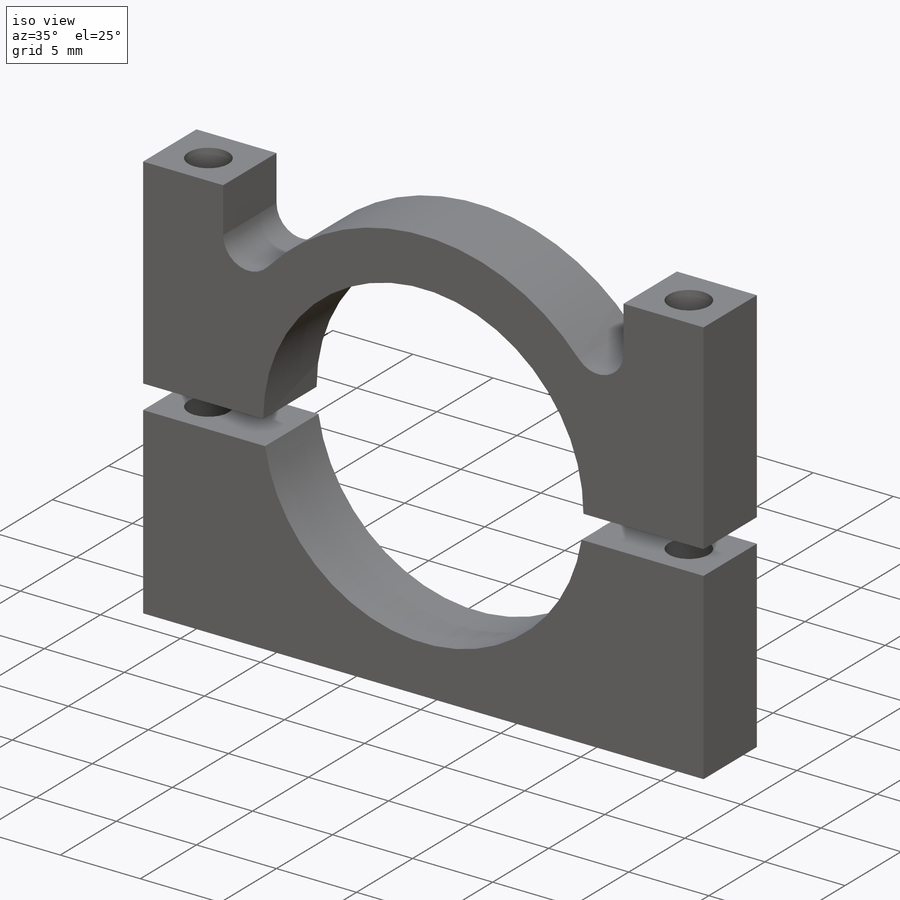
[diagram: iso view]
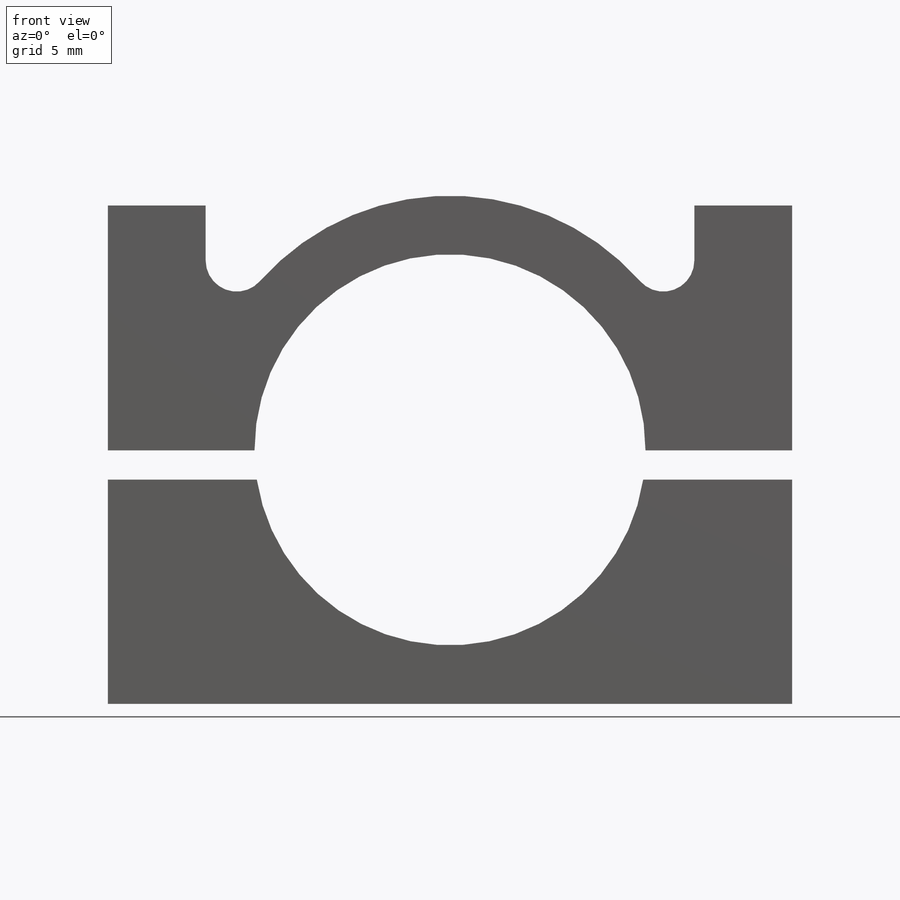
[diagram: front view]
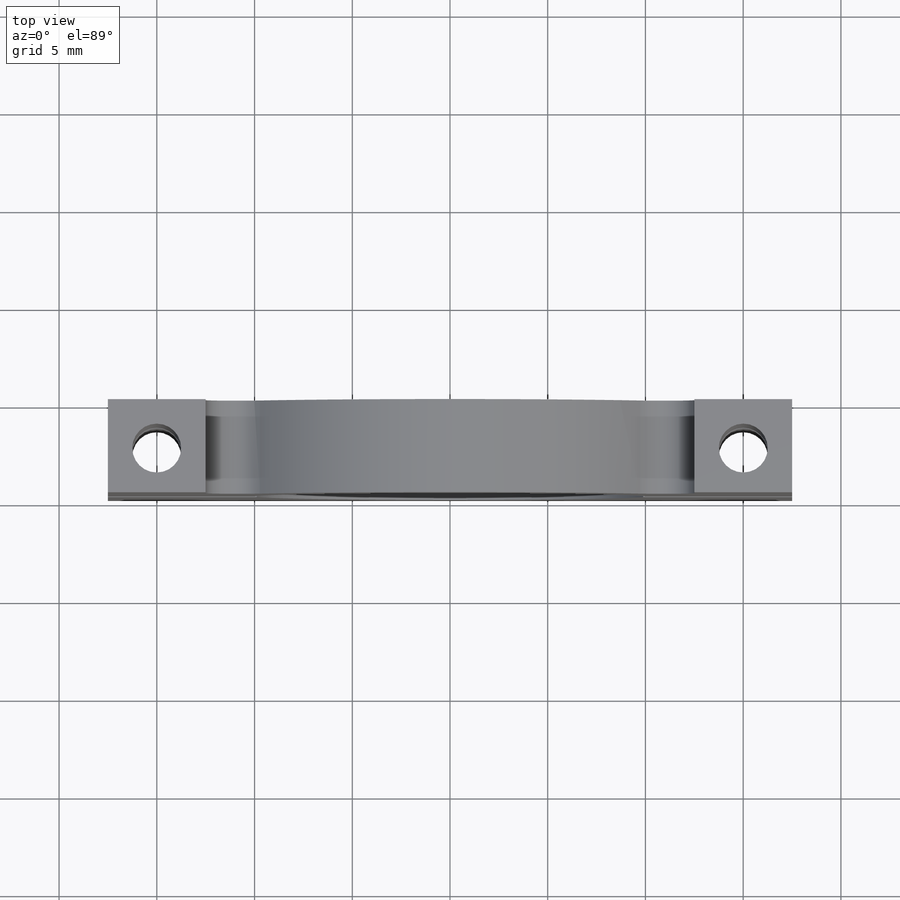
[diagram: top view]
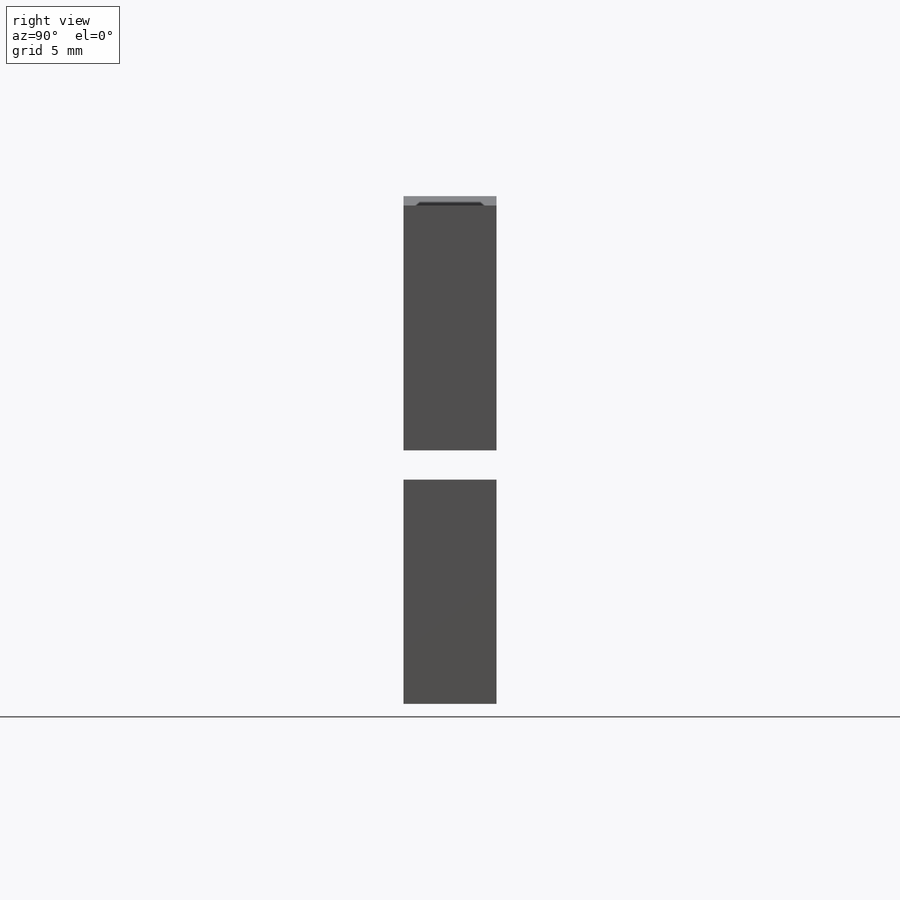
[diagram: right view]
SOLIDWORKS PART (.sldprt)
format: sldprt  version: not decoded by parser v0  size: 242,176 bytes
history: native  units: mm
features: sketch x5, hole x2, material x1, extrude x1 (+13 scaffold rows collapsed)
feature tree (22):
  scaffold x13  (default folders/planes/origin — collapsed)
  material  "Material <not specified>"
  sketch  "Sketch1"  dims[c1.D1=~14.22575mm c1.D9=~20.559859mm c1.D10=1.5875mm c2.D1=7.5mm c2.D2=7.5mm c2.D3=3.0mm c2.D4=2.5mm c2.D5=5.0mm c2.D6=5.0mm c2.D7=5.0mm c3.D6=5.0mm c3.D7=4.0mm c3.D8=4.0mm c4.D7=0.75mm c4.D8=0.75mm c4.D9=3.0mm]
  extrude  "Boss-Extrude1"  Depth=4.763mm
  hole  "Tap Drill for M3x0.5 Tap2"  Diameter=2.5mm Depth=25.5mm
  sketch  "Sketch5"  dims[D1=2.5mm D2=2.5mm]
  sketch  "Sketch4"  dims[hole-wizard template sketch: 60 standard entries collapsed; hole parameters kept: c18.Thru Hole Depth=25.5mm]
  hole  "Tap Drill for M3x0.5 Tap3"  Diameter=2.5mm Depth=25.5mm
  sketch  "Sketch7"  dims[D1=2.5mm D2=2.5mm]
  sketch  "Sketch6"  dims[hole-wizard template sketch: 60 standard entries collapsed; hole parameters kept: c18.Thru Hole Depth=25.5mm]
decode coverage: 8 of 8 modeling features carry decoded parameters
note: ~ marks probable driven/reference dimensions
note: suppression state not decoded; provenance and decode notes live in map.json
